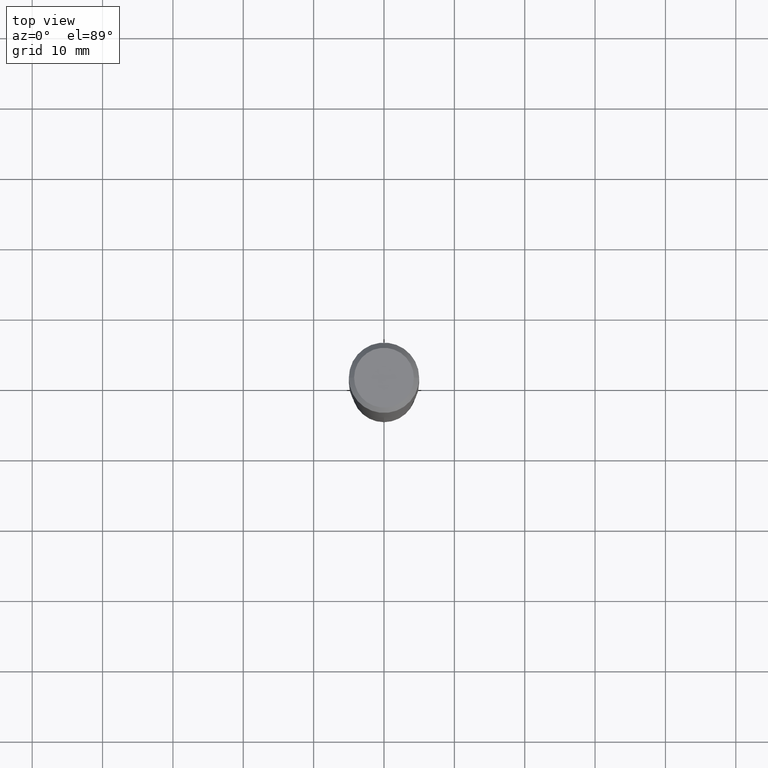
[diagram: clean part render]
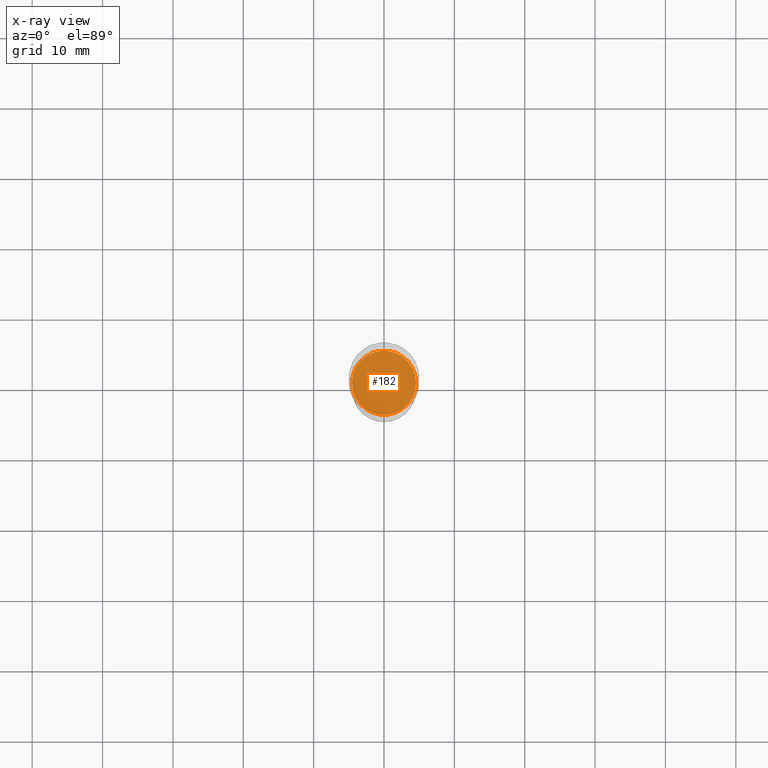
[diagram: x-ray — body ghosted, one internal face saturated and labeled with its STEP entity id]
A machine part, top view, then the same camera in x-ray: the body is ghosted and one INTERNAL B-rep face — a face not visible from any outside direction — is saturated and labeled: STEP entity #182.
In plain terms, the highlighted planar face has unit normal (-0, 0, 1).
Its self-contained STEP definition (entity closure, byte-faithful):
#7 = VERTEX_POINT ( 'NONE', #200 ) ;
#24 = CIRCLE ( 'NONE', #389, 0.1791999999999999982 ) ;
#67 = CIRCLE ( 'NONE', #331, 0.1791999999999999982 ) ;
#78 = EDGE_LOOP ( 'NONE', ( #108, #339 ) ) ;
#108 = ORIENTED_EDGE ( 'NONE', *, *, #289, .F. ) ;
#122 = PLANE ( 'NONE',  #209 ) ;
#182 = ADVANCED_FACE ( 'NONE', ( #302 ), #122, .F. ) ;
#192 = DIRECTION ( 'NONE',  ( -2.445468806185136597E-29, 3.491481338843145583E-15, 1.000000000000000000 ) ) ;
#193 = CARTESIAN_POINT ( 'NONE',  ( 2.283242839927203159E-29, -8.293371871047547882E-15, -1.653399999999999981 ) ) ;
#196 = DIRECTION ( 'NONE',  ( -2.445468806185136597E-29, 3.491481338843145583E-15, 1.000000000000000000 ) ) ;
#200 = CARTESIAN_POINT ( 'NONE',  ( -0.1791999999999999982, -4.496873435987045064E-15, -1.653399999999999981 ) ) ;
#209 = AXIS2_PLACEMENT_3D ( 'NONE', #193, #265, #415 ) ;
#237 = CARTESIAN_POINT ( 'NONE',  ( 4.043338124146504977E-29, -5.772815245643255982E-15, -1.653399999999999981 ) ) ;
#265 = DIRECTION ( 'NONE',  ( -2.438088387897960049E-29, 3.491481338843145188E-15, 1.000000000000000000 ) ) ;
#289 = EDGE_CURVE ( 'NONE', #366, #7, #67, .T. ) ;
#302 = FACE_OUTER_BOUND ( 'NONE', #78, .T. ) ;
#331 = AXIS2_PLACEMENT_3D ( 'NONE', #386, #192, #347 ) ;
#339 = ORIENTED_EDGE ( 'NONE', *, *, #424, .F. ) ;
#347 = DIRECTION ( 'NONE',  ( 1.000000000000000000, -6.982962677686264344E-15, 0.000000000000000000 ) ) ;
#351 = DIRECTION ( 'NONE',  ( 1.000000000000000000, -6.982962677686264344E-15, 0.000000000000000000 ) ) ;
#366 = VERTEX_POINT ( 'NONE', #391 ) ;
#386 = CARTESIAN_POINT ( 'NONE',  ( 4.043338124146504977E-29, -5.772815245643255982E-15, -1.653399999999999981 ) ) ;
#389 = AXIS2_PLACEMENT_3D ( 'NONE', #237, #196, #351 ) ;
#391 = CARTESIAN_POINT ( 'NONE',  ( 0.1791999999999999982, -7.024162157484634705E-15, -1.653399999999999981 ) ) ;
#415 = DIRECTION ( 'NONE',  ( 1.000000000000000000, -6.982962677686265922E-15, 4.876176775795935793E-29 ) ) ;
#424 = EDGE_CURVE ( 'NONE', #7, #366, #24, .T. ) ;